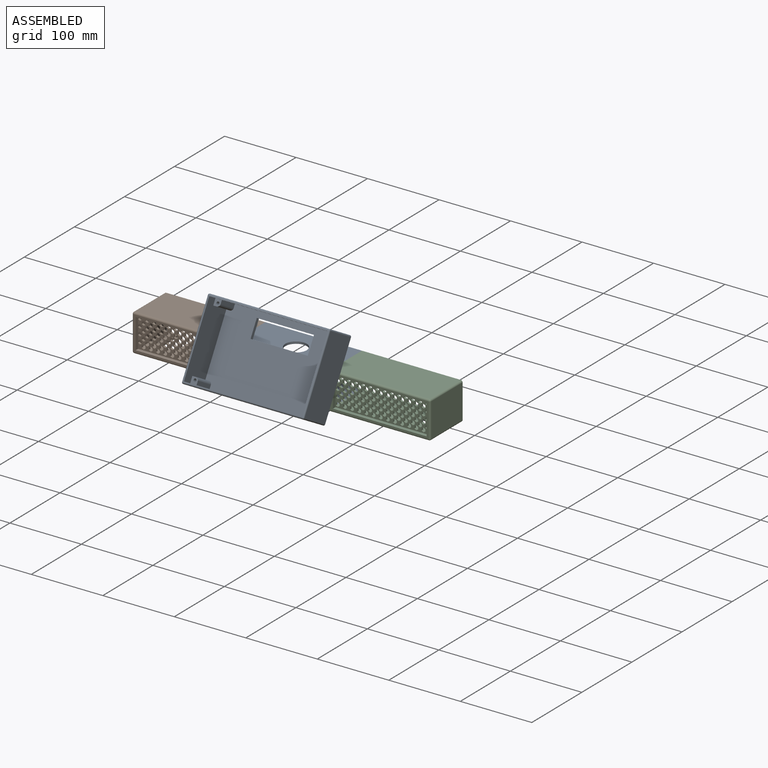
[diagram: assembled view]
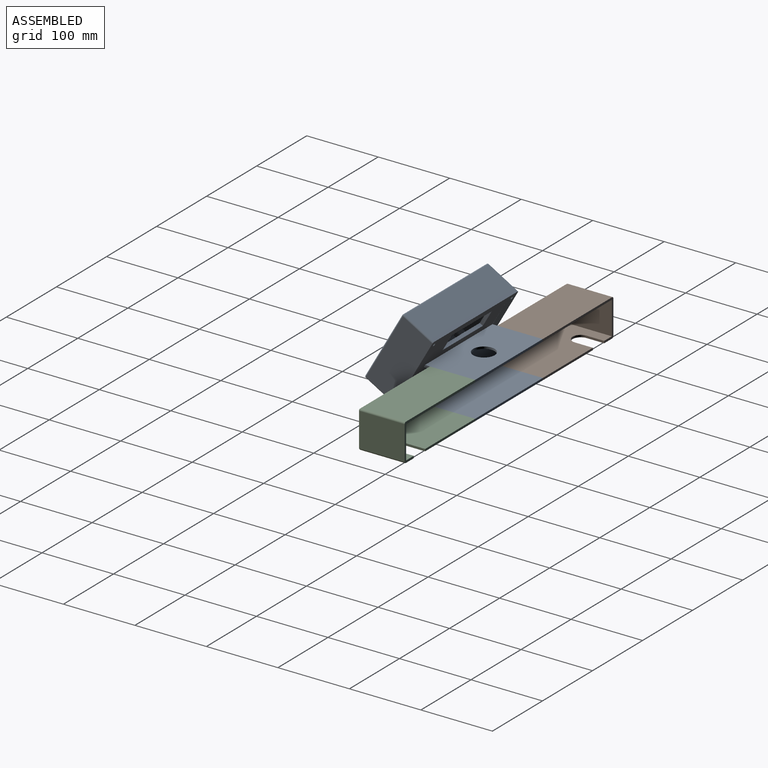
[diagram: assembled view, second angle]
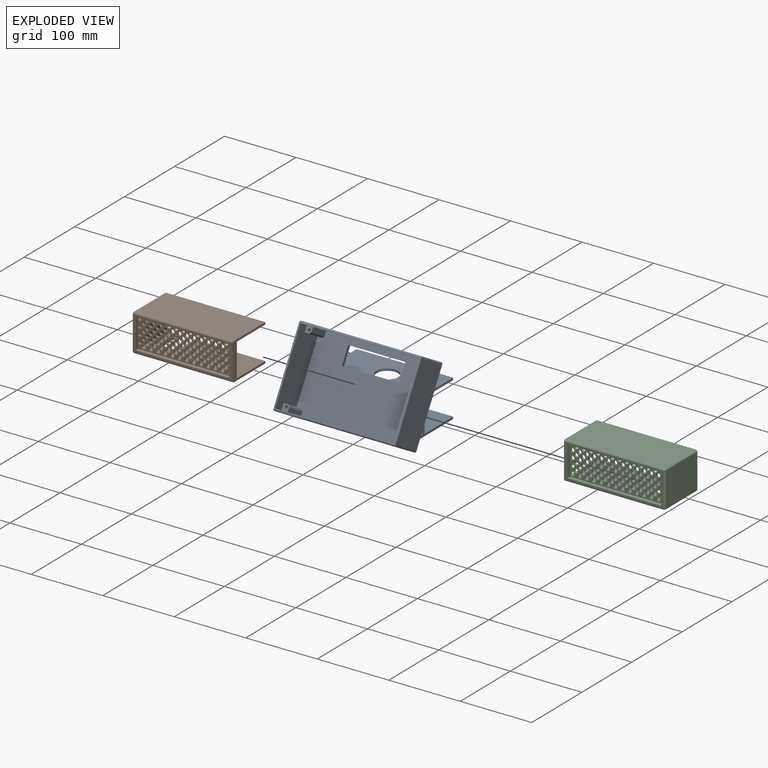
[diagram: exploded view]
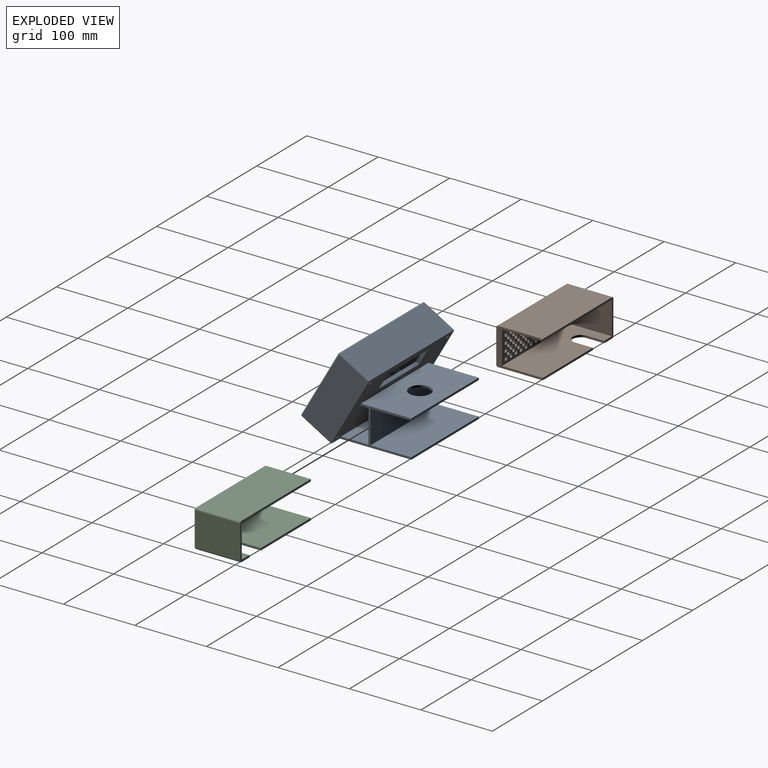
[diagram: exploded view, second angle]
FCSTD DOCUMENT  (FreeCAD 1.1R38728 (Git))
Label: artillery sidewinder x2 front profile
License: All rights reserved
objects: Sketcher::SketchObject×21, PartDesign::Pad×14, PartDesign::Body×6, PartDesign::Pocket×5, PartDesign::ShapeBinder×5, Part::Feature×4, App::Link×3, App::FeaturePython×3, PartDesign::Thickness×2, PartDesign::Fillet×2, Part::Extrusion×2, Part::Cut×2, Part::FeaturePython×1, Part::Fuse×1, Part::Fillet×1, Part::Mirroring×1, Assembly::JointGroup×1, Assembly::AssemblyObject×1
note: 134 computed .brp shape members not serialized (recipe doc carries the construction recipe); baked Part::Feature solids carry a one-line shape summary decoded from their .brp

FEATURE [Sketcher::SketchObject] Sketch
  ArcFitTolerance = 1e-06
  AttachmentSupport = -> [XZ_Plane]
  FullyConstrained = true
  MakeInternals = false
  MapMode = 5
  Placement = pos=(0,0,0) rot=(1,0,0;1.5708rad)
  expr: Constraints[6] = 405 / 3
  sketch-geometry (8):
    g0: LineSegment StartX=-67.5 StartY=-23.1 StartZ=0 EndX=67.5 EndY=-23.1 EndZ=0
    g1: LineSegment StartX=67.5 StartY=-23.1 StartZ=0 EndX=67.5 EndY=23.1 EndZ=0
    g2: LineSegment StartX=67.5 StartY=23.1 StartZ=0 EndX=-67.5 EndY=23.1 EndZ=0
    g3: LineSegment StartX=-67.5 StartY=23.1 StartZ=0 EndX=-67.5 EndY=-23.1 EndZ=0
    g4: LineSegment StartX=-70.5 StartY=26.1 StartZ=0 EndX=-70.5 EndY=-26.1 EndZ=0
    g5: LineSegment StartX=-70.5 StartY=-26.1 StartZ=0 EndX=70.5 EndY=-26.1 EndZ=0
    g6: LineSegment StartX=70.5 StartY=-26.1 StartZ=0 EndX=70.5 EndY=26.1 EndZ=0
    g7: LineSegment StartX=70.5 StartY=26.1 StartZ=0 EndX=-70.5 EndY=26.1 EndZ=0
  constraints (20):
    c: Coincident(g0,g1)
    c: Coincident(g1,g2)
    c: Coincident(g2,g3)
    c: Coincident(g3,g0)
    c: Horizontal(g0)
    c: Vertical(g3)
    c: DistanceX(g2,g2) = 135
    c: DistanceY(g3,g3) = 46.2
    c: Symmetric(g1,g2,g-2)
    c: Coincident(g4,g5)
    c: Coincident(g5,g6)
    c: Coincident(g6,g7)
    c: Coincident(g7,g4)
    c: Vertical(g4)
    c: Horizontal(g5)
    c: Distance(g2,g7) = 3
    c: Distance(g4,g3) = 3
    c: Symmetric(g6,g4,g-2)
    c: Symmetric(g0,g1,g-1)
    c: Symmetric(g6,g5,g-1)
FEATURE [PartDesign::Pad] Pad
  Direction = (0,-1,2e-16)
  Length = 60
  Length2 = 10
  Placement = pos=(0,0,0) rot=(1,0,0;1.5708rad)
  Profile = -> Sketch [Edge5,Edge8,Edge7,Edge6]
  ReferenceAxis = -> Sketch [N_Axis]
  Refine = true
  Suppressed = false
  Type = 0
FEATURE [PartDesign::Thickness] Thickness
  Base = -> Pad [Face5,Face3]
  BaseFeature = -> Pad
  Intersection = false
  Join = 1
  Mode = 0
  Refine = true
  Reversed = true
  SupportTransform = false
  Suppressed = false
  Value = 3
FEATURE [Sketcher::SketchObject] Sketch004
  ArcFitTolerance = 1e-06
  AttachmentSupport = -> [YZ_Plane002]
  FullyConstrained = false
  MakeInternals = false
  MapMode = 5
  Placement = pos=(0,0,0) rot=(0.57735,0.57735,0.57735;2.0944rad)
  sketch-geometry (17):
    g0: LineSegment [constr] StartX=-49.6455 StartY=26.1 StartZ=0 EndX=-49.6455 EndY=-26.1 EndZ=0
    g1: LineSegment StartX=-60 StartY=26.1 StartZ=0 EndX=-36.0187 EndY=67.6369 EndZ=0
    g2: LineSegment StartX=-36.0187 StartY=67.6369 StartZ=0 EndX=-40.3488 EndY=70.1369 EndZ=0
    g3: LineSegment StartX=-89.66 StartY=-26.1 StartZ=0 EndX=-93.9901 EndY=-23.6 EndZ=0
    g4: LineSegment [constr] StartX=-60.0006 StartY=26.099 StartZ=0 EndX=-89.6404 EndY=-26.0656 EndZ=0
    g5: LineSegment StartX=-93.9901 StartY=-23.6 StartZ=0 EndX=-40.3488 EndY=70.1369 EndZ=0
    g6: LineSegment StartX=-87.9554 StartY=-23.1 StartZ=0 EndX=-49.6455 EndY=-23.1 EndZ=0
    g7: LineSegment StartX=-49.6455 StartY=23.1 StartZ=0 EndX=-61.7046 EndY=23.1 EndZ=0
    g8: LineSegment StartX=-61.7046 StartY=23.1 StartZ=0 EndX=-87.9554 EndY=-23.1 EndZ=0
    g9: LineSegment StartX=-49.6455 StartY=-23.1 StartZ=0 EndX=-49.6455 EndY=23.1 EndZ=0
    g10: LineSegment StartX=-60 StartY=26.1 StartZ=0 EndX=10.3545 EndY=26.1 EndZ=0
    g11: LineSegment StartX=-89.66 StartY=-26.1 StartZ=0 EndX=10.3545 EndY=-26.1 EndZ=0
    g12: LineSegment StartX=-46.6455 StartY=23.1 StartZ=0 EndX=-46.6455 EndY=-23.1 EndZ=0
    g13: LineSegment StartX=-46.6455 StartY=-23.1 StartZ=0 EndX=10.3545 EndY=-23.1 EndZ=0
    g14: LineSegment StartX=-46.6455 StartY=23.1 StartZ=0 EndX=10.3545 EndY=23.1 EndZ=0
    g15: LineSegment StartX=10.3545 StartY=23.1 StartZ=0 EndX=10.3545 EndY=26.1 EndZ=0
    g16: LineSegment StartX=10.3545 StartY=-23.1 StartZ=0 EndX=10.3545 EndY=-26.1 EndZ=0
  constraints (44):
    c: Vertical(g0)
    c: Angle(g-1,g1) = 1.0472
    c: Coincident(g2,g1)
    c: Parallel(g2,g3)
    c: Perpendicular(g1,g2)
    c: Equal(g3,g2)
    c: Distance(g2,g2) = 5
    c: Coincident(g5,g3)
    c: Coincident(g5,g2)
    c: PointOnObject(g6,g4)
    c: PointOnObject(g6,g0)
    c: Horizontal(g6)
    c: PointOnObject(g7,g0)
    c: PointOnObject(g7,g4)
    c: Coincident(g8,g7)
    c: Coincident(g8,g6)
    c: Coincident(g9,g6)
    c: Coincident(g9,g7)
    c: Horizontal(g7)
    c: Distance(g3,g6) = 3
    c: Distance(g3,g1) = 108
    c: Block(g5)
    c: Block(g8)
    c: Coincident(g10,g1)
    c: Horizontal(g10)
    c: Coincident(g11,g3)
    c: Horizontal(g11)
    c: Coincident(g13,g12)
    c: Horizontal(g13)
    c: Coincident(g14,g12)
    c: Horizontal(g14)
    c: Vertical(g12)
    c: DistanceX(g13,g13) = 57
    c: Distance(g9,g12) = 3
    c: Horizontal(g12,g7)
    c: Horizontal(g12,g6)
    c: DistanceX(g14,g14) = 57
    c: Coincident(g15,g14)
    c: Coincident(g15,g10)
    c: Coincident(g16,g13)
    c: Coincident(g16,g11)
    c: Vertical(g16)
    c: Vertical(g15)
    c: DistanceY(g15,g15) = 3
FEATURE [PartDesign::Pad] Pad002
  Direction = (1,0,0)
  Length = 135
  Length2 = 10
  Placement = pos=(0,0,0) rot=(1,1,1;2.0944rad)
  Profile = -> Sketch004
  ReferenceAxis = -> Sketch004 [N_Axis]
  Refine = true
  Suppressed = false
  Type = 0
FEATURE [Sketcher::SketchObject] Sketch005
  ArcFitTolerance = 1e-06
  AttachmentSupport = -> [Pad002]
  ExternalGeometry = -> [Pad002]
  FullyConstrained = true
  MakeInternals = false
  MapMode = 5
  Placement = pos=(0,0,0) rot=(0.57735,0.57735,-0.57735;4.18879rad)
  sketch-geometry (4):
    g0: LineSegment StartX=-93.9901 StartY=23.6 StartZ=0 EndX=-40.3488 EndY=-70.1369 EndZ=0
    g1: LineSegment StartX=-36.0187 StartY=-67.6369 StartZ=0 EndX=-40.3488 EndY=-70.1369 EndZ=0
    g2: LineSegment StartX=-36.0187 StartY=-67.6369 StartZ=0 EndX=-89.66 EndY=26.1 EndZ=0
    g3: LineSegment StartX=-93.9901 StartY=23.6 StartZ=0 EndX=-89.66 EndY=26.1 EndZ=0
  constraints (9):
    c: Coincident(g0,g-3)
    c: Coincident(g0,g-4)
    c: Coincident(g1,g-4)
    c: Coincident(g1,g0)
    c: Coincident(g2,g1)
    c: Coincident(g3,g0)
    c: Coincident(g3,g2)
    c: Parallel(g3,g1)
    c: Parallel(g2,g0)
FEATURE [PartDesign::Pad] Pad003
  BaseFeature = -> Pad002
  Direction = (-1,0,0)
  Length = 17.95
  Length2 = 10
  Placement = pos=(0,0,0) rot=(1,1,1;2.0944rad)
  Profile = -> Sketch005
  ReferenceAxis = -> Sketch005 [N_Axis]
  Refine = true
  Suppressed = false
  Type = 0
  expr: Length = (164.9 - 135) / 2 + 3
FEATURE [Sketcher::SketchObject] Sketch006
  ArcFitTolerance = 1e-06
  AttachmentSupport = -> [Pad003]
  ExternalGeometry = -> [Pad003]
  FullyConstrained = true
  MakeInternals = false
  MapMode = 5
  Placement = pos=(135,0,0) rot=(0.57735,0.57735,0.57735;2.0944rad)
  sketch-geometry (4):
    g0: LineSegment StartX=-40.3488 StartY=70.1369 StartZ=0 EndX=-36.0187 EndY=67.6369 EndZ=0
    g1: LineSegment StartX=-40.3488 StartY=70.1369 StartZ=0 EndX=-93.9901 EndY=-23.6 EndZ=0
    g2: LineSegment StartX=-36.0187 StartY=67.6369 StartZ=0 EndX=-89.66 EndY=-26.1 EndZ=0
    g3: LineSegment StartX=-89.66 StartY=-26.1 StartZ=0 EndX=-93.9901 EndY=-23.6 EndZ=0
  constraints (9):
    c: Coincident(g0,g-4)
    c: Coincident(g0,g-4)
    c: Coincident(g1,g0)
    c: Coincident(g1,g-3)
    c: Coincident(g2,g0)
    c: Coincident(g3,g2)
    c: Coincident(g3,g1)
    c: Parallel(g2,g1)
    c: Parallel(g3,g0)
FEATURE [PartDesign::Pad] Pad004
  BaseFeature = -> Pad003
  Direction = (1,0,0)
  Length = 17.95
  Length2 = 10
  Placement = pos=(0,0,0) rot=(1,1,1;2.0944rad)
  Profile = -> Sketch006
  ReferenceAxis = -> Sketch006 [N_Axis]
  Refine = true
  Suppressed = false
  Type = 0
  expr: Length = (164.9 - 135) / 2 + 3
FEATURE [Sketcher::SketchObject] Sketch007
  ArcFitTolerance = 1e-06
  AttachmentSupport = -> [Pad004]
  ExternalGeometry = -> [Pad004]
  FullyConstrained = false
  MakeInternals = false
  MapMode = 5
  Placement = pos=(-3.63e-14,-60.6301,34.6958) rot=(0.448399,0.448399,-0.773225;1.82519rad)
  sketch-geometry (26):
    g0: LineSegment StartX=67.1662 StartY=-17.95 StartZ=0 EndX=67.1662 EndY=152.95 EndZ=0
    g1: LineSegment StartX=67.1662 StartY=152.95 StartZ=0 EndX=-40.8338 EndY=152.95 EndZ=0
    g2: LineSegment StartX=-40.8338 StartY=152.95 StartZ=0 EndX=-40.8338 EndY=-17.95 EndZ=0
    g3: LineSegment StartX=-40.8338 StartY=-17.95 StartZ=0 EndX=67.1662 EndY=-17.95 EndZ=0
    g4: LineSegment StartX=-37.8338 StartY=140.995 StartZ=0 EndX=-37.8338 EndY=-5.995 EndZ=0
    g5: LineSegment StartX=-28.8838 StartY=-14.95 StartZ=0 EndX=55.2162 EndY=-14.95 EndZ=0
    g6: LineSegment StartX=64.1662 StartY=-5.995 StartZ=0 EndX=64.1662 EndY=140.995 EndZ=0
    g7: LineSegment StartX=55.2162 StartY=149.95 StartZ=0 EndX=-28.8838 EndY=149.95 EndZ=0
    g8: LineSegment [constr] StartX=13.1662 StartY=167.324 StartZ=0 EndX=13.1662 EndY=-51.66 EndZ=0
    g9: LineSegment [constr] StartX=-85.0664 StartY=67.5 StartZ=0 EndX=84.919 EndY=67.5 EndZ=0
    g10: Circle CenterX=-32.8338 CenterY=144.945 CenterZ=0 NormalX=0 NormalY=0 NormalZ=1 AngleXU=0 Radius=1.95
    g11: Circle CenterX=59.1662 CenterY=144.945 CenterZ=0 NormalX=0 NormalY=0 NormalZ=1 AngleXU=0 Radius=1.95
    g12: Circle CenterX=-32.8338 CenterY=-9.945 CenterZ=0 NormalX=0 NormalY=0 NormalZ=1 AngleXU=0 Radius=1.95
    g13: Circle CenterX=59.1662 CenterY=-9.945 CenterZ=0 NormalX=0 NormalY=0 NormalZ=1 AngleXU=0 Radius=1.95
    g14: ArcOfCircle CenterX=-32.8338 CenterY=-9.945 CenterZ=0 NormalX=0 NormalY=0 NormalZ=1 AngleXU=0 Radius=3.95 StartAngle=-1.8e-15 EndAngle=1.5708
    g15: ArcOfCircle CenterX=59.1662 CenterY=-9.945 CenterZ=0 NormalX=0 NormalY=0 NormalZ=1 AngleXU=0 Radius=3.95 StartAngle=1.5708 EndAngle=3.14159
    g16: ArcOfCircle CenterX=59.1662 CenterY=144.945 CenterZ=0 NormalX=0 NormalY=0 NormalZ=1 AngleXU=0 Radius=3.95 StartAngle=3.14159 EndAngle=4.71239
    g17: ArcOfCircle CenterX=-32.8338 CenterY=144.945 CenterZ=0 NormalX=0 NormalY=0 NormalZ=1 AngleXU=0 Radius=3.95 StartAngle=4.71239 EndAngle=6.28319
    g18: LineSegment StartX=-28.8838 StartY=149.95 StartZ=0 EndX=-28.8838 EndY=144.945 EndZ=0
    g19: LineSegment StartX=-37.8338 StartY=140.995 StartZ=0 EndX=-32.8338 EndY=140.995 EndZ=0
    g20: LineSegment StartX=-37.8338 StartY=-5.995 StartZ=0 EndX=-32.8338 EndY=-5.995 EndZ=0
    g21: LineSegment StartX=55.2162 StartY=-14.95 StartZ=0 EndX=55.2162 EndY=-9.945 EndZ=0
    g22: LineSegment StartX=-28.8838 StartY=-9.945 StartZ=0 EndX=-28.8838 EndY=-14.95 EndZ=0
    g23: LineSegment StartX=59.1662 StartY=-5.995 StartZ=0 EndX=64.1662 EndY=-5.995 EndZ=0
    g24: LineSegment StartX=55.2162 StartY=144.945 StartZ=0 EndX=55.2162 EndY=149.95 EndZ=0
    g25: LineSegment StartX=59.1662 StartY=140.995 StartZ=0 EndX=64.1662 EndY=140.995 EndZ=0
  constraints (53):
    c: Coincident(g0,g1)
    c: Coincident(g1,g2)
    c: Coincident(g2,g3)
    c: Coincident(g3,g0)
    c: Vertical(g0)
    c: Vertical(g2)
    c: Horizontal(g1)
    c: Horizontal(g3)
    c: Coincident(g0,g-4)
    c: Coincident(g1,g-3)
    c: Vertical(g6)
    c: Horizontal(g5)
    c: Symmetric(g0,g0,g9)
    c: Symmetric(g0,g1,g8)
    c: Distance(g1,g7) = 3
    c: Symmetric(g10,g11,g8)
    c: Symmetric(g11,g13,g9)
    c: Symmetric(g13,g12,g8)
    c: Equal(g10,g11)
    c: Equal(g11,g12)
    c: Equal(g12,g13)
    c: DistanceY(g12,g10) = 154.89
    c: DistanceX(g12,g13) = 92
    c: Diameter(g12) = 3.9
    c: Coincident(g14,g12)
    c: Coincident(g15,g13)
    c: Coincident(g16,g11)
    c: Coincident(g17,g10)
    c: Equal(g14,g15)
    c: Equal(g15,g16)
    c: Equal(g16,g17)
    c: Distance(g2,g4) = 3
    c: Vertical(g18)
    c: Horizontal(g19)
    c: Distance(g14,g12) = 2
    c: Horizontal(g20)
    c: Vertical(g21)
    c: Coincident(g14,g20)
    c: Coincident(g14,g22)
    c: Tangent(g15,g21) = 1.5708
    c: Coincident(g15,g23)
    c: Coincident(g16,g25)
    c: Coincident(g16,g24)
    c: Coincident(g17,g18)
    c: Coincident(g17,g19)
    c: Coincident(g7,g24)
    c: Coincident(g6,g25)
    c: Coincident(g7,g18)
    c: Coincident(g4,g19)
    c: Coincident(g4,g20)
    c: Coincident(g5,g22)
    c: Coincident(g5,g21)
    c: Coincident(g6,g23)
FEATURE [PartDesign::Pad] Pad005
  BaseFeature = -> Pad004
  Direction = (-1e-16,-0.867934,0.496679)
  Length = 30
  Length2 = 10
  Placement = pos=(0,0,0) rot=(1,1,1;2.0944rad)
  Profile = -> Sketch007
  ReferenceAxis = -> Sketch007 [N_Axis]
  Refine = true
  Suppressed = false
  Type = 0
FEATURE [Sketcher::SketchObject] Sketch008
  ArcFitTolerance = 1e-06
  AttachmentSupport = -> [Pad005]
  ExternalGeometry = -> [Pad005]
  FullyConstrained = true
  MakeInternals = false
  MapMode = 5
  Placement = pos=(-1.6e-14,-86.6681,49.5962) rot=(0.448399,0.448399,-0.773225;1.82519rad)
  sketch-geometry (8):
    g0: LineSegment StartX=67.1662 StartY=-17.95 StartZ=0 EndX=67.1662 EndY=152.95 EndZ=0
    g1: LineSegment StartX=67.1662 StartY=152.95 StartZ=0 EndX=-40.8338 EndY=152.95 EndZ=0
    g2: LineSegment StartX=-40.8338 StartY=152.95 StartZ=0 EndX=-40.8338 EndY=-17.95 EndZ=0
    g3: LineSegment StartX=-40.8338 StartY=-17.95 StartZ=0 EndX=67.1662 EndY=-17.95 EndZ=0
    g4: LineSegment StartX=64.1662 StartY=-14.95 StartZ=0 EndX=64.1662 EndY=149.95 EndZ=0
    g5: LineSegment StartX=64.1662 StartY=149.95 StartZ=0 EndX=-37.8338 EndY=149.95 EndZ=0
    g6: LineSegment StartX=-37.8338 StartY=149.95 StartZ=0 EndX=-37.8338 EndY=-14.95 EndZ=0
    g7: LineSegment StartX=-37.8338 StartY=-14.95 StartZ=0 EndX=64.1662 EndY=-14.95 EndZ=0
  constraints (22):
    c: Coincident(g0,g1)
    c: Coincident(g1,g2)
    c: Coincident(g2,g3)
    c: Coincident(g3,g0)
    c: Vertical(g0)
    c: Vertical(g2)
    c: Horizontal(g1)
    c: Horizontal(g3)
    c: Coincident(g0,g-5)
    c: Coincident(g1,g-4)
    c: Coincident(g4,g5)
    c: Coincident(g5,g6)
    c: Coincident(g6,g7)
    c: Coincident(g7,g4)
    c: Vertical(g4)
    c: Vertical(g6)
    c: Horizontal(g5)
    c: Horizontal(g7)
    c: PointOnObject(g5,g-3)
    c: PointOnObject(g6,g-6)
    c: PointOnObject(g4,g-8)
    c: PointOnObject(g4,g-7)
FEATURE [PartDesign::Pad] Pad006
  BaseFeature = -> Pad005
  Direction = (-1e-16,-0.867934,0.496679)
  Length = 14.35
  Length2 = 10
  Placement = pos=(0,0,0) rot=(1,1,1;2.0944rad)
  Profile = -> Sketch008
  ReferenceAxis = -> Sketch008 [N_Axis]
  Refine = true
  Suppressed = false
  Type = 0
FEATURE [PartDesign::Fillet] Fillet
  Base = -> Pad006 [Edge143,Edge13,Edge144,Edge59,Edge64,Edge61,Edge66,Edge11]
  BaseFeature = -> Pad006
  Placement = pos=(0,0,0) rot=(1,1,1;2.0944rad)
  Radius = 2
  Refine = true
  SupportTransform = false
  Suppressed = false
  UseAllEdges = false
FEATURE [Sketcher::SketchObject] Sketch009
  ArcFitTolerance = 1e-06
  AttachmentSupport = -> [Fillet]
  ExternalGeometry = -> [Fillet]
  FullyConstrained = false
  MakeInternals = false
  MapMode = 5
  Placement = pos=(-1.24e-14,-56.3016,32.5058) rot=(0.654654,0.654654,0.377964;3.86433rad)
  sketch-geometry (6):
    g0: LineSegment StartX=4.13752 StartY=107.5 StartZ=0 EndX=4.13752 EndY=27.5 EndZ=0
    g1: LineSegment StartX=4.13752 StartY=27.5 StartZ=0 EndX=29.1375 EndY=27.5 EndZ=0
    g2: LineSegment StartX=29.1375 StartY=27.5 StartZ=0 EndX=29.1375 EndY=107.5 EndZ=0
    g3: LineSegment StartX=29.1375 StartY=107.5 StartZ=0 EndX=4.13752 EndY=107.5 EndZ=0
    g4: LineSegment [constr] StartX=-58.3131 StartY=67.5 StartZ=0 EndX=123.417 EndY=67.5 EndZ=0
    g5: LineSegment [constr] StartX=16.6375 StartY=155.246 StartZ=0 EndX=16.6375 EndY=-46.6703 EndZ=0
  constraints (12):
    c: Coincident(g0,g1)
    c: Coincident(g1,g2)
    c: Coincident(g2,g3)
    c: Coincident(g3,g0)
    c: Vertical(g0)
    c: Horizontal(g1)
    c: DistanceX(g3,g3) = 25
    c: DistanceY(g2,g2) = 80
    c: Symmetric(g-3,g-3,g5)
    c: Symmetric(g-4,g-3,g4)
    c: Symmetric(g2,g1,g4)
    c: Symmetric(g0,g2,g5)
FEATURE [PartDesign::Pocket] Pocket
  BaseFeature = -> Fillet
  Direction = (0,-0.866025,0.5)
  Length = 5
  Length2 = 5
  Placement = pos=(0,0,0) rot=(1,1,1;2.0944rad)
  Profile = -> Sketch009
  ReferenceAxis = -> Sketch009 [N_Axis]
  Refine = true
  Suppressed = false
  Type = 2
FEATURE [Sketcher::SketchObject] Sketch011
  ArcFitTolerance = 1e-06
  AttachmentSupport = -> [Thickness]
  ExternalGeometry = -> [Thickness]
  FullyConstrained = true
  MakeInternals = false
  MapMode = 5
  Placement = pos=(0,-60,0) rot=(1,0,0;1.5708rad)
  sketch-geometry (17):
    g0: LineSegment StartX=-60.3038 StartY=16.6 StartZ=0 EndX=-60.3038 EndY=19.6 EndZ=0
    g1: LineSegment StartX=-60.3038 StartY=19.6 StartZ=0 EndX=-62.9019 EndY=21.1 EndZ=0
    g2: LineSegment StartX=-62.9019 StartY=21.1 StartZ=0 EndX=-65.5 EndY=19.6 EndZ=0
    g3: LineSegment StartX=-65.5 StartY=19.6 StartZ=0 EndX=-65.5 EndY=16.6 EndZ=0
    g4: LineSegment StartX=-65.5 StartY=16.6 StartZ=0 EndX=-62.9019 EndY=15.1 EndZ=0
    g5: LineSegment StartX=-62.9019 StartY=15.1 StartZ=0 EndX=-60.3038 EndY=16.6 EndZ=0
    g6: Circle [constr] CenterX=-62.9019 CenterY=18.1 CenterZ=0 NormalX=0 NormalY=0 NormalZ=1 AngleXU=0 Radius=3
    g7: LineSegment StartX=-55.1077 StartY=11.6 StartZ=0 EndX=-55.1077 EndY=14.6 EndZ=0
    g8: LineSegment StartX=-55.1077 StartY=14.6 StartZ=0 EndX=-57.7058 EndY=16.1 EndZ=0
    g9: LineSegment StartX=-57.7058 StartY=16.1 StartZ=0 EndX=-60.3038 EndY=14.6 EndZ=0
    g10: LineSegment StartX=-60.3038 StartY=14.6 StartZ=0 EndX=-60.3038 EndY=11.6 EndZ=0
    g11: LineSegment StartX=-60.3038 StartY=11.6 StartZ=0 EndX=-57.7058 EndY=10.1 EndZ=0
    g12: LineSegment StartX=-57.7058 StartY=10.1 StartZ=0 EndX=-55.1077 EndY=11.6 EndZ=0
    g13: Circle [constr] CenterX=-57.7058 CenterY=13.1 CenterZ=0 NormalX=0 NormalY=0 NormalZ=1 AngleXU=0 Radius=3
    g14: LineSegment [constr] StartX=-60.3038 StartY=16.6 StartZ=0 EndX=-60.3038 EndY=14.6 EndZ=0
    g15: LineSegment [constr] StartX=-60.3038 StartY=16.6 StartZ=0 EndX=-58.5718 EndY=15.6 EndZ=0
    g16: LineSegment [constr] StartX=-58.5718 StartY=15.6 StartZ=0 EndX=-60.3038 EndY=14.6 EndZ=0
  constraints (41):
    c: Coincident(g0,g1)
    c: Coincident(g1,g2)
    c: Coincident(g2,g3)
    c: Coincident(g3,g4)
    c: Coincident(g4,g5)
    c: Coincident(g5,g0)
    c: Equal(g0, g1-g5) x5
    c: PointOnObject(g0,g6)
    c: PointOnObject(g1,g6)
    c: PointOnObject(g2,g6)
    c: PointOnObject(g3,g6)
    c: PointOnObject(g4,g6)
    c: PointOnObject(g5,g6)
    c: Coincident(g7,g8)
    c: Coincident(g8,g9)
    c: Coincident(g9,g10)
    c: Coincident(g10,g11)
    c: Coincident(g11,g12)
    c: Coincident(g12,g7)
    c: Equal(g7, g8-g12) x5
    c: PointOnObject(g7,g13)
    c: PointOnObject(g8,g13)
    c: PointOnObject(g9,g13)
    c: PointOnObject(g10,g13)
    c: PointOnObject(g11,g13)
    c: PointOnObject(g12,g13)
    c: Equal(g13,g6)
    c: Distance(g1,g1) = 3
    c: Horizontal(g9,g7)
    c: Horizontal(g2,g0)
    c: Coincident(g14,g0)
    c: Coincident(g14,g9)
    c: Coincident(g15,g14)
    c: Coincident(g16,g15)
    c: Coincident(g16,g14)
    c: Equal(g16,g15)
    c: Equal(g15,g14)
    c: Distance(g16,g16) = 2
    c: PointOnObject(g15,g9)
    c: Distance(g1,g-4) = 5
    c: Distance(g2,g-3) = 5
FEATURE [PartDesign::Body] Body  label="left section"
  AllowCompound = false
  Group = -> [Sketch,Pad,Thickness,Sketch011]
  Origin = -> Origin
  Tip = -> Thickness
FEATURE [Part::FeaturePython] Array  # Draft array (typed FeaturePython)
  Angle = 360
  ArrayType = 0
  Axis = (0,0,1)
  Base = -> Sketch011
  Center = (0,0,0)
  Count = 52
  Fuse = false
  IntervalAxis = (0,0,0)
  IntervalX = (10,0,0)
  IntervalY = (0,93,0)
  IntervalZ = (0,0,-10)
  NumberCircles = 3
  NumberPolar = 5
  NumberX = 13
  NumberY = 1
  NumberZ = 4
  RadialDistance = 50
  Symmetry = 1
  TangentialDistance = 25
FEATURE [Part::Extrusion] Extrude
  Base = -> Array
  Dir = (0,1,0)
  DirMode = 2
  FaceMakerClass = Part::FaceMakerBullseye
  FaceMakerMode = 3
  LengthFwd = 10
  LengthRev = 0
  Solid = true
  Symmetric = false
FEATURE [Part::Cut] Cut
  Base = -> Body
  Tool = -> Extrude
FEATURE [PartDesign::ShapeBinder] CopyCut
  TraceSupport = false
FEATURE [Sketcher::SketchObject] Sketch012
  ArcFitTolerance = 1e-06
  AttachmentSupport = -> [CopyCut]
  ExternalGeometry = -> [CopyCut]
  FullyConstrained = true
  MakeInternals = false
  MapMode = 5
  Placement = pos=(0,-60,0) rot=(1,0,0;1.5708rad)
  sketch-geometry (8):
    g0: LineSegment StartX=-70.5 StartY=26.1 StartZ=0 EndX=-70.5 EndY=-26.1 EndZ=0
    g1: LineSegment StartX=-70.5 StartY=-26.1 StartZ=0 EndX=70.5 EndY=-26.1 EndZ=0
    g2: LineSegment StartX=70.5 StartY=-26.1 StartZ=0 EndX=70.5 EndY=26.1 EndZ=0
    g3: LineSegment StartX=70.5 StartY=26.1 StartZ=0 EndX=-70.5 EndY=26.1 EndZ=0
    g4: LineSegment StartX=-65.5 StartY=21.1 StartZ=0 EndX=-65.5 EndY=-21.1 EndZ=0
    g5: LineSegment StartX=-65.5 StartY=-21.1 StartZ=0 EndX=65.5 EndY=-21.1 EndZ=0
    g6: LineSegment StartX=65.5 StartY=-21.1 StartZ=0 EndX=65.5 EndY=21.1 EndZ=0
    g7: LineSegment StartX=65.5 StartY=21.1 StartZ=0 EndX=-65.5 EndY=21.1 EndZ=0
  constraints (22):
    c: Coincident(g0,g1)
    c: Coincident(g1,g2)
    c: Coincident(g2,g3)
    c: Coincident(g3,g0)
    c: Vertical(g0)
    c: Vertical(g2)
    c: Horizontal(g1)
    c: Horizontal(g3)
    c: Coincident(g0,g-3)
    c: Coincident(g1,g-4)
    c: Coincident(g4,g5)
    c: Coincident(g5,g6)
    c: Coincident(g6,g7)
    c: Coincident(g7,g4)
    c: Vertical(g4)
    c: Vertical(g6)
    c: Horizontal(g5)
    c: Horizontal(g7)
    c: Distance(g2,g6) = 5
    c: Distance(g0,g4) = 5
    c: Distance(g7,g3) = 5
    c: Distance(g5,g1) = 5
FEATURE [Part::Feature] Cut_solid  label="Cut (Solid)"
  shape: bbox 141 x 60 x 52.2 mm, 634 faces (baked)
FEATURE [PartDesign::Pad] Pad007
  Direction = (0,-1,2e-16)
  Length = 5
  Length2 = 10
  Profile = -> Sketch012
  ReferenceAxis = -> Sketch012 [N_Axis]
  Refine = true
  Suppressed = false
  Type = 0
FEATURE [PartDesign::ShapeBinder] CopyFusion
  TraceSupport = false
FEATURE [Sketcher::SketchObject] Sketch013
  ArcFitTolerance = 1e-06
  AttachmentSupport = -> [CopyFusion]
  FullyConstrained = true
  MakeInternals = false
  MapMode = 5
  Placement = pos=(70.5,0,0) rot=(0.57735,0.57735,0.57735;2.0944rad)
FEATURE [Part::Feature] Fusion_solid  label="side profile001"
  shape: bbox 141 x 65 x 52.2 mm, 644 faces (baked)
FEATURE [PartDesign::ShapeBinder] CopyFusion001
  TraceSupport = false
FEATURE [Sketcher::SketchObject] Sketch014
  ArcFitTolerance = 1e-06
  AttachmentSupport = -> [CopyFusion001]
  FullyConstrained = true
  MakeInternals = false
  MapMode = 5
  Placement = pos=(70.5,0,0) rot=(0.57735,0.57735,0.57735;2.0944rad)
FEATURE [PartDesign::ShapeBinder] CopyFusion_solid
  TraceSupport = false
FEATURE [Sketcher::SketchObject] Sketch015
  ArcFitTolerance = 1e-06
  AttachmentSupport = -> [CopyFusion_solid]
  FullyConstrained = true
  MakeInternals = false
  MapMode = 5
  Placement = pos=(-70.5,0,0) rot=(0.57735,-0.57735,-0.57735;2.0944rad)
FEATURE [PartDesign::Body] Body003  label="side profile"
  AllowCompound = false
  Group = -> [CopyCut,Sketch012,Pad007,CopyFusion,Sketch013,CopyFusion001,Sketch014,CopyFusion_solid,Sketch015]
  Origin = -> Origin003
  Tip = -> Pad007
FEATURE [Part::Fuse] Fusion
  Base = -> Body003
  Tool = -> Cut_solid
FEATURE [Sketcher::SketchObject] Sketch016
  ArcFitTolerance = 1e-06
  AttachmentSupport = -> [Pocket]
  ExternalGeometry = -> [Pocket]
  FullyConstrained = false
  MakeInternals = false
  MapMode = 5
  Placement = pos=(0,5.7e-15,26.1) rot=(0,0,-1;1.5708rad)
  sketch-geometry (3):
    g0: LineSegment [constr] StartX=24.7169 StartY=156.261 StartZ=0 EndX=24.7169 EndY=-40.7732 EndZ=0
    g1: LineSegment [constr] StartX=-57.0307 StartY=67.5 StartZ=0 EndX=24.7169 EndY=67.5 EndZ=0
    g2: Circle CenterX=24.7169 CenterY=67.5 CenterZ=0 NormalX=0 NormalY=0 NormalZ=1 AngleXU=0 Radius=15
  constraints (5):
    c: Symmetric(g-3,g-3,g0)
    c: Symmetric(g-3,g-4,g1)
    c: PointOnObject(g1,g0)
    c: Coincident(g2,g1)
    c: Diameter(g2) = 30
FEATURE [PartDesign::Pocket] Pocket001
  BaseFeature = -> Pocket
  Direction = (0,0,-1)
  Length = 5
  Length2 = 5
  Placement = pos=(0,0,0) rot=(1,1,1;2.0944rad)
  Profile = -> Sketch016
  ReferenceAxis = -> Sketch016 [N_Axis]
  Refine = true
  Suppressed = false
  Type = 2
FEATURE [Part::Fillet] Fillet001
  Base = -> Fusion_solid
  EdgeLinks = -> Fusion_solid [Edge1,Edge2,Edge4,Edge7,Edge10,Edge11,Edge12]
  Edges = 7 edges r=2.5: [Edge1,Edge2,Edge4,Edge7,Edge10,Edge11,Edge12]
FEATURE [PartDesign::Pocket] Pocket002
  BaseFeature = -> Pocket001
  Direction = (-1.1e-15,-0.867934,0.496679)
  Length = 0
  Length2 = 5
  Placement = pos=(0,0,0) rot=(1,1,1;2.0944rad)
  Profile = -> Pocket001 [Edge173,Edge172,Edge170,Edge171]
  Refine = true
  Suppressed = false
  Type = 3
  UpToFace = -> Pocket001 [Face2]
FEATURE [PartDesign::Fillet] Fillet004
  Base = -> Pocket002 [Edge45,Edge28,Edge79,Edge82,Edge64,Edge80,Edge81,Edge78]
  BaseFeature = -> Pocket002
  Placement = pos=(0,0,0) rot=(1,1,1;2.0944rad)
  Radius = 2
  Refine = true
  SupportTransform = false
  Suppressed = false
  UseAllEdges = false
FEATURE [PartDesign::Body] Body002  label="front profile"
  AllowCompound = false
  Group = -> [Sketch004,Pad002,Sketch005,Pad003,Sketch006,Pad004,Sketch007,Pad005,Sketch008,Pad006,Fillet,Sketch009,Pocket,Sketch016,Pocket001,Pocket002,Fillet004]
  Origin = -> Origin002
  Tip = -> Fillet004
FEATURE [PartDesign::ShapeBinder] CopyFillet001
  TraceSupport = false
FEATURE [Sketcher::SketchObject] Sketch017
  ArcFitTolerance = 1e-06
  AttachmentSupport = -> [CopyFillet001]
  ExternalGeometry = -> [CopyFillet001]
  FullyConstrained = true
  MakeInternals = false
  MapMode = 5
  Placement = pos=(0,-1.15e-14,-26.1) rot=(1,0,0;3.14159rad)
  sketch-geometry (4):
    g0: ArcOfCircle CenterX=-40.85 CenterY=24.85 CenterZ=0 NormalX=0 NormalY=0 NormalZ=1 AngleXU=0 Radius=11.35 StartAngle=0 EndAngle=3.14159
    g1: LineSegment StartX=-29.5 StartY=24.85 StartZ=0 EndX=-29.5 EndY=0 EndZ=0
    g2: LineSegment StartX=-52.2 StartY=24.85 StartZ=0 EndX=-52.2 EndY=0 EndZ=0
    g3: LineSegment StartX=-52.2 StartY=0 StartZ=0 EndX=-29.5 EndY=0 EndZ=0
  constraints (11):
    c: PointOnObject(g1,g-1)
    c: Vertical(g1)
    c: Distance(g-3,g1) = 38.5
    c: Diameter(g0) = 22.7
    c: Distance(g0,g-4) = 23.8
    c: PointOnObject(g2,g-1)
    c: Vertical(g2)
    c: Coincident(g3,g2)
    c: Coincident(g3,g1)
    c: Tangent(g0,g2) = -1.5708
    c: Tangent(g0,g1) = 1.5708
FEATURE [Part::Extrusion] Extrude001
  Base = -> Sketch017
  Dir = (0,0,-1)
  DirMode = 2
  FaceMakerClass = Part::FaceMakerBullseye
  FaceMakerMode = 3
  LengthFwd = 10
  LengthRev = 0
  Reversed = true
  Solid = true
  Symmetric = false
FEATURE [PartDesign::Body] Body004
  AllowCompound = false
  Group = -> [CopyFillet001,Sketch017]
  Origin = -> Origin005
FEATURE [Part::Cut] Cut001
  Base = -> Fillet001
  Tool = -> Extrude001
FEATURE [Part::Feature] Cut001_solid  label="left side profile"
  shape: bbox 141 x 65 x 52.2 mm, 657 faces (baked)
FEATURE [Part::Mirroring] Part__Mirroring  label="Cut001 (Mirror #1)"
  Base = (200,299,200)
  Normal = (0,0,1)
  Source = -> Cut001
FEATURE [Part::Feature] Part__Mirroring_solid  label="right side profile"
  Placement = pos=(0,0,0) rot=(0,0,1;0.017453rad)
  shape: bbox 142.1 x 67.41 x 52.2 mm, 657 faces (baked)
FEATURE [App::Link] front_profile  label="front profile001"
  LinkedObject = -> Body002
FEATURE [App::FeaturePython] GroundedJoint  # Assembly grounded joint (typed FeaturePython)
  ObjectToGround = -> front_profile
FEATURE [App::Link] right_side_profile  label="right side profile001"
  LinkPlacement = pos=(205.5,10.3545,400) rot=(0,1,0;3.14159rad)
  LinkedObject = -> Part__Mirroring_solid
  Placement = pos=(205.5,10.3545,400) rot=(0,1,0;3.14159rad)
FEATURE [App::Link] left_side_profile  label="left side profile001"
  LinkPlacement = pos=(-70.5,10.3545,1.01e-14) rot=(0,0,1;0rad)
  LinkedObject = -> Cut001_solid
  Placement = pos=(-70.5,10.3545,1.01e-14) rot=(0,0,1;0rad)
FEATURE [App::FeaturePython] Fijo  # Assembly joint (typed FeaturePython)
  Activated = true
  AngleMax = 0
  AngleMin = 0
  Detach1 = false
  Detach2 = false
  Distance = 0
  Distance2 = 0
  EnableAngleMax = false
  EnableAngleMin = false
  EnableLengthMax = false
  EnableLengthMin = false
  JointType = 0 (Fixed)
  LengthMax = 0
  LengthMin = 0
  Placement1 = pos=(3.85e-14,10.3545,-23.1) rot=(0.707107,0,0.707107;3.14159rad)
  Placement2 = pos=(70.5,-3.6e-15,-23.1) rot=(0,-1,0;1.5708rad)
  Reference1 = -> Assembly [front_profile.Fillet004.Face26,front_profile.Fillet004.Vertex74]
  Reference2 = -> Assembly [left_side_profile.Face19,left_side_profile.Vertex40]
FEATURE [App::FeaturePython] Fijo001  # Assembly joint (typed FeaturePython)
  Activated = true
  AngleMax = 0
  AngleMin = 0
  Detach1 = false
  Detach2 = false
  Distance = 0
  Distance2 = 0
  EnableAngleMax = false
  EnableAngleMin = false
  EnableLengthMax = false
  EnableLengthMin = false
  JointType = 0 (Fixed)
  LengthMax = 0
  LengthMin = 0
  Placement1 = pos=(135,10.3545,-23.1) rot=(0.707107,0,0.707107;3.14159rad)
  Placement2 = pos=(70.5,-3.6e-15,423.1) rot=(0,-1,0;4.71239rad)
  Reference1 = -> Assembly [front_profile.Fillet004.Face38,front_profile.Fillet004.Vertex92]
  Reference2 = -> Assembly [right_side_profile.Face19,right_side_profile.Vertex40]
FEATURE [Assembly::JointGroup] Joints
  Group = -> [GroundedJoint,Fijo,Fijo001]
FEATURE [Assembly::AssemblyObject] Assembly
  Group = -> [Joints,front_profile,GroundedJoint,right_side_profile,left_side_profile,Fijo,Fijo001]
  Origin = -> Origin006
  Type = Assembly
FEATURE [Sketcher::SketchObject] Sketch018
  ArcFitTolerance = 1e-06
  AttachmentSupport = -> [XZ_Plane007]
  FullyConstrained = true
  MakeInternals = false
  MapMode = 5
  Placement = pos=(0,0,0) rot=(1,0,0;1.5708rad)
  sketch-geometry (4):
    g0: LineSegment StartX=0 StartY=46.2 StartZ=0 EndX=0 EndY=0 EndZ=0
    g1: LineSegment StartX=0 StartY=0 StartZ=0 EndX=135 EndY=0 EndZ=0
    g2: LineSegment StartX=135 StartY=0 StartZ=0 EndX=135 EndY=46.2 EndZ=0
    g3: LineSegment StartX=135 StartY=46.2 StartZ=0 EndX=0 EndY=46.2 EndZ=0
  constraints (12):
    c: Coincident(g0,g1)
    c: Coincident(g1,g2)
    c: Coincident(g2,g3)
    c: Coincident(g3,g0)
    c: Vertical(g0)
    c: Vertical(g2)
    c: Horizontal(g1)
    c: Horizontal(g3)
    c: PointOnObject(g0,g-2)
    c: DistanceX(g3,g3) = 135
    c: DistanceY(g0,g0) = 46.2
    c: PointOnObject(g1,g-1)
FEATURE [PartDesign::Pad] Pad008
  Direction = (0,-1,2e-16)
  Length = 57
  Length2 = 10
  Placement = pos=(0,0,0) rot=(1,0,0;1.5708rad)
  Profile = -> Sketch018
  ReferenceAxis = -> Sketch018 [N_Axis]
  Refine = true
  Suppressed = false
  Type = 0
FEATURE [PartDesign::Thickness] Thickness001
  Base = -> Pad008 [Face3,Face5,Face1]
  BaseFeature = -> Pad008
  Intersection = false
  Join = 1
  Mode = 0
  Refine = true
  SupportTransform = false
  Suppressed = false
  Value = 3
FEATURE [Sketcher::SketchObject] Sketch019
  ArcFitTolerance = 1e-06
  AttachmentSupport = -> [Thickness001]
  ExternalGeometry = -> [Thickness001]
  FullyConstrained = false
  MakeInternals = false
  MapMode = 5
  Placement = pos=(0,-60,0) rot=(1,0,0;1.5708rad)
  sketch-geometry (4):
    g0: Circle [constr] CenterX=67.5 CenterY=23.1 CenterZ=0 NormalX=0 NormalY=0 NormalZ=1 AngleXU=0 Radius=20
    g1: LineSegment [constr] StartX=-35.3965 StartY=23.1 StartZ=0 EndX=174.868 EndY=23.1 EndZ=0
    g2: LineSegment [constr] StartX=67.5 StartY=61.8916 StartZ=0 EndX=67.5 EndY=23.1 EndZ=0
    g3: Circle CenterX=67.5 CenterY=23.1 CenterZ=0 NormalX=0 NormalY=0 NormalZ=1 AngleXU=0 Radius=10
  constraints (7):
    c: Symmetric(g-3,g-4,g2)
    c: Symmetric(g-3,g-3,g1)
    c: PointOnObject(g2,g1)
    c: Coincident(g0,g2)
    c: Diameter(g0) = 40
    c: Coincident(g3,g0)
    c: Distance(g3,g0) = 10
FEATURE [PartDesign::Pad] Pad009
  BaseFeature = -> Thickness001
  Direction = (0,-1,2e-16)
  Length = 6
  Length2 = 10
  Profile = -> Sketch019
  ReferenceAxis = -> Sketch019 [N_Axis]
  Refine = true
  Suppressed = false
  Type = 0
FEATURE [Sketcher::SketchObject] Sketch020
  ArcFitTolerance = 1e-06
  AttachmentSupport = -> [Pad009]
  ExternalGeometry = -> [Pad009]
  FullyConstrained = true
  MakeInternals = false
  MapMode = 5
  Placement = pos=(1.56e-14,-66,2.71e-14) rot=(1,0,0;1.5708rad)
  sketch-geometry (8):
    g0: Circle [constr] CenterX=67.5 CenterY=23.1 CenterZ=0 NormalX=0 NormalY=0 NormalZ=1 AngleXU=0 Radius=15
    g1: LineSegment StartX=60 StartY=36.0904 StartZ=0 EndX=52.5 EndY=23.1 EndZ=0
    g2: LineSegment StartX=52.5 StartY=23.1 StartZ=0 EndX=60 EndY=10.1096 EndZ=0
    g3: LineSegment StartX=60 StartY=10.1096 StartZ=0 EndX=75 EndY=10.1096 EndZ=0
    g4: LineSegment StartX=75 StartY=10.1096 StartZ=0 EndX=82.5 EndY=23.1 EndZ=0
    g5: LineSegment StartX=82.5 StartY=23.1 StartZ=0 EndX=75 EndY=36.0904 EndZ=0
    g6: LineSegment StartX=75 StartY=36.0904 StartZ=0 EndX=60 EndY=36.0904 EndZ=0
    g7: Circle [constr] CenterX=67.5 CenterY=23.1 CenterZ=0 NormalX=0 NormalY=0 NormalZ=1 AngleXU=0 Radius=15
  constraints (18):
    c: Coincident(g0,g-3)
    c: Distance(g-3,g0) = 5
    c: Coincident(g1,g2)
    c: Coincident(g2,g3)
    c: Coincident(g3,g4)
    c: Coincident(g4,g5)
    c: Coincident(g5,g6)
    c: Coincident(g6,g1)
    c: Equal(g1, g2-g6) x5
    c: PointOnObject(g1,g7)
    c: PointOnObject(g2,g7)
    c: PointOnObject(g3,g7)
    c: PointOnObject(g4,g7)
    c: PointOnObject(g5,g7)
    c: PointOnObject(g6,g7)
    c: Coincident(g7,g0)
    c: PointOnObject(g6,g0)
    c: Horizontal(g1,g5)
FEATURE [PartDesign::Pad] Pad010
  BaseFeature = -> Pad009
  Direction = (0,-1,2e-16)
  Length = 14
  Length2 = 10
  Profile = -> Sketch020
  ReferenceAxis = -> Sketch020 [N_Axis]
  Refine = true
  Suppressed = false
  Type = 0
FEATURE [PartDesign::Body] Body005  label="mid profile with mounting hole"
  AllowCompound = false
  Group = -> [Sketch018,Pad008,Thickness001,Sketch019,Pad009,Sketch020,Pad010]
  Origin = -> Origin007
  Tip = -> Pad010
FEATURE [Sketcher::SketchObject] Sketch021
  ArcFitTolerance = 1e-06
  AttachmentSupport = -> [XZ_Plane008]
  FullyConstrained = false
  MakeInternals = false
  MapMode = 5
  Placement = pos=(0,0,0) rot=(1,0,0;1.5708rad)
  sketch-geometry (3):
    g0: Circle CenterX=45.0958 CenterY=21.5576 CenterZ=0 NormalX=0 NormalY=0 NormalZ=1 AngleXU=0 Radius=10.5
    g1: Circle CenterX=45.0958 CenterY=21.5576 CenterZ=0 NormalX=0 NormalY=0 NormalZ=1 AngleXU=0 Radius=20.5
    g2: Circle CenterX=45.0958 CenterY=21.5576 CenterZ=0 NormalX=0 NormalY=0 NormalZ=1 AngleXU=0 Radius=22.5
  constraints (5):
    c: Diameter(g0) = 21
    c: Coincident(g1,g0)
    c: Distance(g1,g0) = 10
    c: Coincident(g2,g0)
    c: Distance(g2,g1) = 2
FEATURE [PartDesign::Pad] Pad011
  Direction = (0,-1,2e-16)
  Length = 2
  Length2 = 10
  Placement = pos=(0,0,0) rot=(1,0,0;1.5708rad)
  Profile = -> Sketch021 [Edge3,Edge1]
  ReferenceAxis = -> Sketch021 [N_Axis]
  Refine = true
  Suppressed = false
  Type = 0
FEATURE [PartDesign::Pad] Pad012
  BaseFeature = -> Pad011
  Direction = (0,-1,2e-16)
  Length = 16
  Length2 = 10
  Placement = pos=(0,0,0) rot=(1,0,0;1.5708rad)
  Profile = -> Sketch021 [Edge3,Edge2]
  ReferenceAxis = -> Sketch021 [N_Axis]
  Refine = true
  Suppressed = false
  Type = 0
FEATURE [PartDesign::Pad] Pad013
  BaseFeature = -> Pad012
  Direction = (0,1,-2e-16)
  Length = 2
  Length2 = 10
  Placement = pos=(0,0,0) rot=(1,0,0;1.5708rad)
  Profile = -> Pad012 [Edge1]
  Refine = true
  Suppressed = false
  Type = 0
FEATURE [Sketcher::SketchObject] Sketch022
  ArcFitTolerance = 1e-06
  AttachmentSupport = -> [Pad013]
  ExternalGeometry = -> [Pad013]
  FullyConstrained = true
  MakeInternals = false
  MapMode = 5
  Placement = pos=(0,-16,0) rot=(1,0,0;1.5708rad)
  sketch-geometry (4):
    g0: LineSegment StartX=36.0958 StartY=42.1792 StartZ=0 EndX=36.0958 EndY=0.936005 EndZ=0
    g1: LineSegment StartX=36.0958 StartY=0.936005 StartZ=0 EndX=54.0958 EndY=0.936005 EndZ=0
    g2: LineSegment StartX=54.0958 StartY=0.936005 StartZ=0 EndX=54.0958 EndY=42.1792 EndZ=0
    g3: LineSegment StartX=54.0958 StartY=42.1792 StartZ=0 EndX=36.0958 EndY=42.1792 EndZ=0
  constraints (12):
    c: Coincident(g0,g1)
    c: Coincident(g1,g2)
    c: Coincident(g2,g3)
    c: Coincident(g3,g0)
    c: Vertical(g0)
    c: Vertical(g2)
    c: Horizontal(g1)
    c: Horizontal(g3)
    c: PointOnObject(g0,g-3)
    c: PointOnObject(g1,g-3)
    c: PointOnObject(g2,g-3)
    c: DistanceX(g3,g3) = 18
FEATURE [PartDesign::Pad] Pad014
  BaseFeature = -> Pad013
  Direction = (0,-1,2e-16)
  Length = 30
  Length2 = 10
  Placement = pos=(0,0,0) rot=(1,0,0;1.5708rad)
  Profile = -> Sketch022
  ReferenceAxis = -> Sketch022 [N_Axis]
  Refine = true
  Suppressed = false
  Type = 0
FEATURE [Sketcher::SketchObject] Sketch023
  ArcFitTolerance = 1e-06
  AttachmentSupport = -> [Pad014]
  ExternalGeometry = -> [Pad014]
  FullyConstrained = false
  MakeInternals = false
  MapMode = 5
  Placement = pos=(36.0958,0,0) rot=(0.707107,0,-0.707107;3.14159rad)
  sketch-geometry (8):
    g0: Circle CenterX=-21.5576 CenterY=31 CenterZ=0 NormalX=0 NormalY=0 NormalZ=1 AngleXU=0 Radius=6
    g1: LineSegment [constr] StartX=-21.5576 StartY=49.6586 StartZ=0 EndX=-21.5576 EndY=0.554381 EndZ=0
    g2: LineSegment [constr] StartX=-62.4642 StartY=31 StartZ=0 EndX=-21.5576 EndY=31 EndZ=0
    g3: ArcOfCircle CenterX=-21.5576 CenterY=25.3784 CenterZ=0 NormalX=0 NormalY=0 NormalZ=1 AngleXU=0 Radius=20.6216 StartAngle=-3.6e-15 EndAngle=3.14159
    g4: LineSegment StartX=-42.1792 StartY=46 StartZ=0 EndX=-0.936005 EndY=46 EndZ=0
    g5: LineSegment [constr] StartX=-0.936005 StartY=46 StartZ=0 EndX=-0.936005 EndY=46 EndZ=0
    g6: LineSegment StartX=-42.1792 StartY=46 StartZ=0 EndX=-42.1792 EndY=25.3784 EndZ=0
    g7: LineSegment StartX=-0.936005 StartY=25.3784 StartZ=0 EndX=-0.936005 EndY=46 EndZ=0
  constraints (17):
    c: Diameter(g0) = 12
    c: Symmetric(g-5,g-5,g1)
    c: Symmetric(g-6,g-5,g2)
    c: PointOnObject(g2,g1)
    c: Coincident(g0,g2)
    c: PointOnObject(g3,g1)
    c: Tangent(g3,g-5)
    c: Coincident(g4,g-5)
    c: Coincident(g4,g-5)
    c: Coincident(g5,g4)
    c: Tangent(g3,g-4) = -1.5708
    c: PointOnObject(g5,g4)
    c: Coincident(g6,g-5)
    c: Coincident(g6,g3)
    c: Coincident(g7,g3)
    c: Coincident(g7,g5)
    c: Vertical(g7)
FEATURE [PartDesign::Pocket] Pocket003
  BaseFeature = -> Pad014
  Direction = (1,0,2e-16)
  Length = 20
  Length2 = 5
  Placement = pos=(0,0,0) rot=(1,0,0;1.5708rad)
  Profile = -> Sketch023
  ReferenceAxis = -> Sketch023 [N_Axis]
  Refine = true
  Suppressed = false
  Type = 2
FEATURE [Sketcher::SketchObject] Sketch024
  ArcFitTolerance = 1e-06
  AttachmentSupport = -> [XY_Plane008]
  ExternalGeometry = -> [Pocket003]
  FullyConstrained = false
  MakeInternals = false
  MapMode = 5
  sketch-geometry (3):
    g0: Circle CenterX=45.0958 CenterY=-8 CenterZ=0 NormalX=0 NormalY=0 NormalZ=1 AngleXU=0 Radius=5
    g1: LineSegment [constr] StartX=45.0958 StartY=13.3746 StartZ=0 EndX=45.0958 EndY=-31.8912 EndZ=0
    g2: LineSegment [constr] StartX=45.0958 StartY=-8 StartZ=0 EndX=81.8537 EndY=-8 EndZ=0
  constraints (5):
    c: Diameter(g0) = 10
    c: Symmetric(g-3,g-5,g2)
    c: Symmetric(g-3,g-3,g1)
    c: PointOnObject(g2,g1)
    c: Coincident(g0,g2)
FEATURE [PartDesign::Pocket] Pocket004
  BaseFeature = -> Pocket003
  Direction = (0,0,-1)
  Length = 6
  Length2 = 5
  Midplane = true
  Placement = pos=(0,0,0) rot=(1,0,0;1.5708rad)
  Profile = -> Sketch024
  ReferenceAxis = -> Sketch024 [N_Axis]
  Refine = true
  Suppressed = false
  Type = 0
FEATURE [PartDesign::Body] Body006  label="gyroid"
  AllowCompound = false
  Group = -> [Sketch021,Pad011,Pad012,Pad013,Sketch022,Pad014,Sketch023,Pocket003,Sketch024,Pocket004]
  Origin = -> Origin008
  Tip = -> Pocket004
